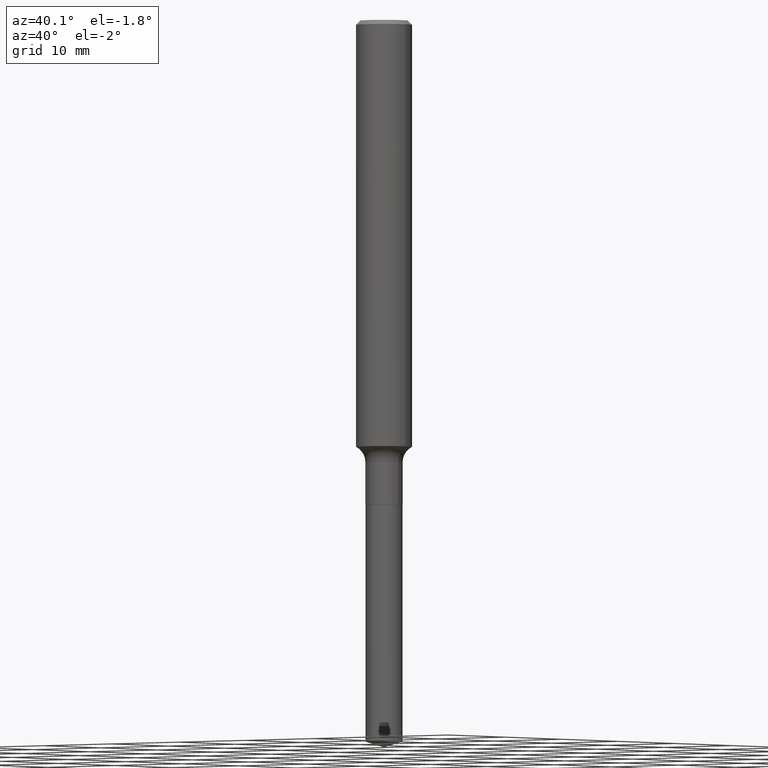
[diagram: clean part render]
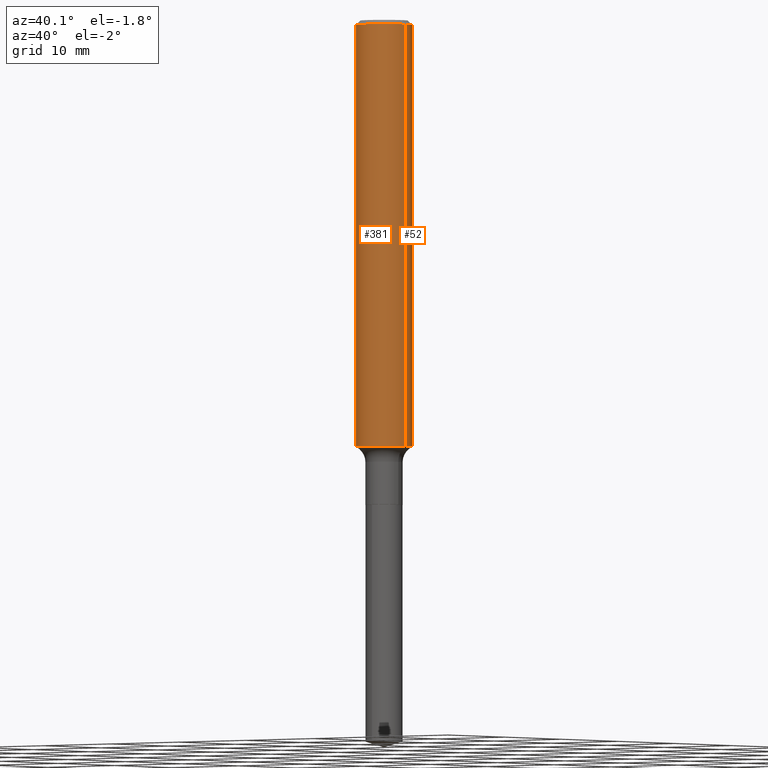
[diagram: same view with one multi-face feature highlighted, each face labeled with its STEP entity id]
A machine part, auxiliary view. The highlighted faces form ONE feature: a constant-radius fillet chain: 2 tangent blend faces with common blend radius 3.175 mm. The faces share edges in the B-rep.
Their STEP definitions:
[1] entity #381 (Cylinder):
#2 = EDGE_CURVE ( 'NONE', #251, #137, #111, .T. ) ;
#31 = CARTESIAN_POINT ( 'NONE',  ( -0.1250000000000002498, -5.766252010118968709E-15, -1.905904624431975281 ) ) ;
#38 = CARTESIAN_POINT ( 'NONE',  ( -0.1250000000000000000, -2.471769432761074338E-15, -0.01875000000000014155 ) ) ;
#44 = EDGE_CURVE ( 'NONE', #137, #176, #318, .T. ) ;
#50 = DIRECTION ( 'NONE',  ( -2.445468806185136877E-29, 3.491481338843145188E-15, 1.000000000000000000 ) ) ;
#73 = FACE_OUTER_BOUND ( 'NONE', #254, .T. ) ;
#107 = CARTESIAN_POINT ( 'NONE',  ( 0.000000000000000000, 0.000000000000000000, 0.000000000000000000 ) ) ;
#111 = CIRCLE ( 'NONE', #127, 0.1250000000000002498 ) ;
#117 = EDGE_CURVE ( 'NONE', #399, #176, #471, .T. ) ;
#127 = AXIS2_PLACEMENT_3D ( 'NONE', #230, #382, #462 ) ;
#130 = DIRECTION ( 'NONE',  ( -2.445468806185136877E-29, 3.491481338843145188E-15, 1.000000000000000000 ) ) ;
#137 = VERTEX_POINT ( 'NONE', #474 ) ;
#149 = CARTESIAN_POINT ( 'NONE',  ( 0.1250000000000000000, -9.383356098140928781E-16, -0.01875000000000014155 ) ) ;
#173 = VECTOR ( 'NONE', #130, 39.37007874015748143 ) ;
#176 = VERTEX_POINT ( 'NONE', #149 ) ;
#183 = CARTESIAN_POINT ( 'NONE',  ( 4.585254011597165626E-31, -6.546527510330947764E-17, -0.01875000000000014155 ) ) ;
#184 = VECTOR ( 'NONE', #50, 39.37007874015748143 ) ;
#189 = DIRECTION ( 'NONE',  ( 1.000000000000000000, -6.982962677686267499E-15, 4.876176775795936353E-29 ) ) ;
#211 = DIRECTION ( 'NONE',  ( -2.445468806185136597E-29, 3.491481338843145583E-15, 1.000000000000000000 ) ) ;
#217 = CYLINDRICAL_SURFACE ( 'NONE', #284, 0.1250000000000001110 ) ;
#230 = CARTESIAN_POINT ( 'NONE',  ( 4.660830306612393661E-29, -6.654430429819095519E-15, -1.905904624431975281 ) ) ;
#251 = VERTEX_POINT ( 'NONE', #31 ) ;
#254 = EDGE_LOOP ( 'NONE', ( #308, #332, #441, #403 ) ) ;
#284 = AXIS2_PLACEMENT_3D ( 'NONE', #107, #452, #189 ) ;
#308 = ORIENTED_EDGE ( 'NONE', *, *, #433, .F. ) ;
#314 = CARTESIAN_POINT ( 'NONE',  ( 0.1250000000000001110, -8.728703347107842263E-16, 6.095220969744926047E-30 ) ) ;
#316 = AXIS2_PLACEMENT_3D ( 'NONE', #183, #211, #451 ) ;
#318 = LINE ( 'NONE', #314, #173 ) ;
#332 = ORIENTED_EDGE ( 'NONE', *, *, #2, .T. ) ;
#381 = ADVANCED_FACE ( 'NONE', ( #73 ), #217, .T. ) ;
#382 = DIRECTION ( 'NONE',  ( -2.445468806185136597E-29, 3.491481338843145583E-15, 1.000000000000000000 ) ) ;
#399 = VERTEX_POINT ( 'NONE', #38 ) ;
#403 = ORIENTED_EDGE ( 'NONE', *, *, #117, .F. ) ;
#427 = LINE ( 'NONE', #463, #184 ) ;
#433 = EDGE_CURVE ( 'NONE', #251, #399, #427, .T. ) ;
#441 = ORIENTED_EDGE ( 'NONE', *, *, #44, .T. ) ;
#451 = DIRECTION ( 'NONE',  ( 1.000000000000000000, -6.982962677686266711E-15, 0.000000000000000000 ) ) ;
#452 = DIRECTION ( 'NONE',  ( -2.445468806185136597E-29, 3.491481338843145583E-15, 1.000000000000000000 ) ) ;
#462 = DIRECTION ( 'NONE',  ( 1.000000000000000000, -6.982962677686264344E-15, 0.000000000000000000 ) ) ;
#463 = CARTESIAN_POINT ( 'NONE',  ( -0.1250000000000001110, 8.881784197001260212E-16, -6.148668862818637832E-30 ) ) ;
#471 = CIRCLE ( 'NONE', #316, 0.1250000000000000000 ) ;
#474 = CARTESIAN_POINT ( 'NONE',  ( 0.1250000000000002498, -7.527300764529879646E-15, -1.905904624431975281 ) ) ;
[2] entity #52 (Cylinder):
#10 = DIRECTION ( 'NONE',  ( 1.000000000000000000, -6.982962677686267499E-15, 4.876176775795936353E-29 ) ) ;
#24 = CARTESIAN_POINT ( 'NONE',  ( 4.585254011597165626E-31, -6.546527510330947764E-17, -0.01875000000000014155 ) ) ;
#31 = CARTESIAN_POINT ( 'NONE',  ( -0.1250000000000002498, -5.766252010118968709E-15, -1.905904624431975281 ) ) ;
#38 = CARTESIAN_POINT ( 'NONE',  ( -0.1250000000000000000, -2.471769432761074338E-15, -0.01875000000000014155 ) ) ;
#44 = EDGE_CURVE ( 'NONE', #137, #176, #318, .T. ) ;
#50 = DIRECTION ( 'NONE',  ( -2.445468806185136877E-29, 3.491481338843145188E-15, 1.000000000000000000 ) ) ;
#52 = ADVANCED_FACE ( 'NONE', ( #125 ), #241, .T. ) ;
#58 = DIRECTION ( 'NONE',  ( -2.445468806185136597E-29, 3.491481338843145583E-15, 1.000000000000000000 ) ) ;
#125 = FACE_OUTER_BOUND ( 'NONE', #191, .T. ) ;
#130 = DIRECTION ( 'NONE',  ( -2.445468806185136877E-29, 3.491481338843145188E-15, 1.000000000000000000 ) ) ;
#137 = VERTEX_POINT ( 'NONE', #474 ) ;
#142 = DIRECTION ( 'NONE',  ( 1.000000000000000000, -6.982962677686266711E-15, 0.000000000000000000 ) ) ;
#149 = CARTESIAN_POINT ( 'NONE',  ( 0.1250000000000000000, -9.383356098140928781E-16, -0.01875000000000014155 ) ) ;
#168 = AXIS2_PLACEMENT_3D ( 'NONE', #262, #302, #336 ) ;
#173 = VECTOR ( 'NONE', #130, 39.37007874015748143 ) ;
#176 = VERTEX_POINT ( 'NONE', #149 ) ;
#184 = VECTOR ( 'NONE', #50, 39.37007874015748143 ) ;
#188 = ORIENTED_EDGE ( 'NONE', *, *, #44, .F. ) ;
#191 = EDGE_LOOP ( 'NONE', ( #367, #387, #237, #188 ) ) ;
#222 = CIRCLE ( 'NONE', #309, 0.1250000000000000000 ) ;
#237 = ORIENTED_EDGE ( 'NONE', *, *, #337, .F. ) ;
#238 = AXIS2_PLACEMENT_3D ( 'NONE', #428, #58, #10 ) ;
#241 = CYLINDRICAL_SURFACE ( 'NONE', #238, 0.1250000000000001110 ) ;
#251 = VERTEX_POINT ( 'NONE', #31 ) ;
#262 = CARTESIAN_POINT ( 'NONE',  ( 4.660830306612393661E-29, -6.654430429819095519E-15, -1.905904624431975281 ) ) ;
#275 = CIRCLE ( 'NONE', #168, 0.1250000000000002498 ) ;
#302 = DIRECTION ( 'NONE',  ( -2.445468806185136597E-29, 3.491481338843145583E-15, 1.000000000000000000 ) ) ;
#303 = EDGE_CURVE ( 'NONE', #137, #251, #275, .T. ) ;
#309 = AXIS2_PLACEMENT_3D ( 'NONE', #24, #415, #142 ) ;
#314 = CARTESIAN_POINT ( 'NONE',  ( 0.1250000000000001110, -8.728703347107842263E-16, 6.095220969744926047E-30 ) ) ;
#318 = LINE ( 'NONE', #314, #173 ) ;
#336 = DIRECTION ( 'NONE',  ( 1.000000000000000000, -6.982962677686264344E-15, 0.000000000000000000 ) ) ;
#337 = EDGE_CURVE ( 'NONE', #176, #399, #222, .T. ) ;
#367 = ORIENTED_EDGE ( 'NONE', *, *, #303, .T. ) ;
#387 = ORIENTED_EDGE ( 'NONE', *, *, #433, .T. ) ;
#399 = VERTEX_POINT ( 'NONE', #38 ) ;
#415 = DIRECTION ( 'NONE',  ( -2.445468806185136597E-29, 3.491481338843145583E-15, 1.000000000000000000 ) ) ;
#427 = LINE ( 'NONE', #463, #184 ) ;
#428 = CARTESIAN_POINT ( 'NONE',  ( 0.000000000000000000, 0.000000000000000000, 0.000000000000000000 ) ) ;
#433 = EDGE_CURVE ( 'NONE', #251, #399, #427, .T. ) ;
#463 = CARTESIAN_POINT ( 'NONE',  ( -0.1250000000000001110, 8.881784197001260212E-16, -6.148668862818637832E-30 ) ) ;
#474 = CARTESIAN_POINT ( 'NONE',  ( 0.1250000000000002498, -7.527300764529879646E-15, -1.905904624431975281 ) ) ;